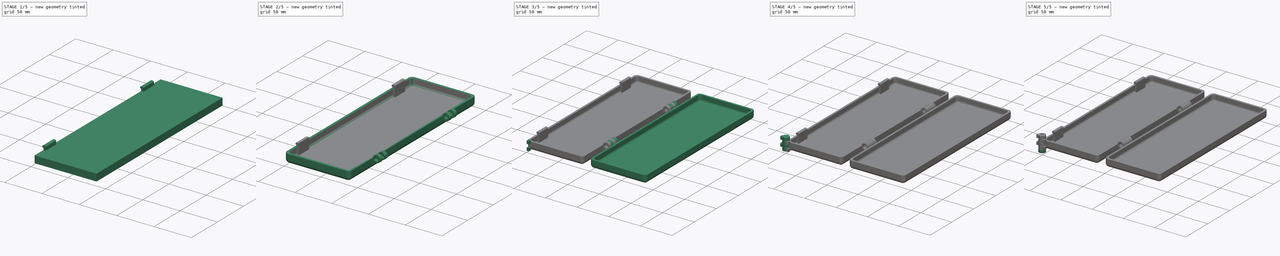
[diagram: build sequence overview — one tinted view per stage of 5, left to right]
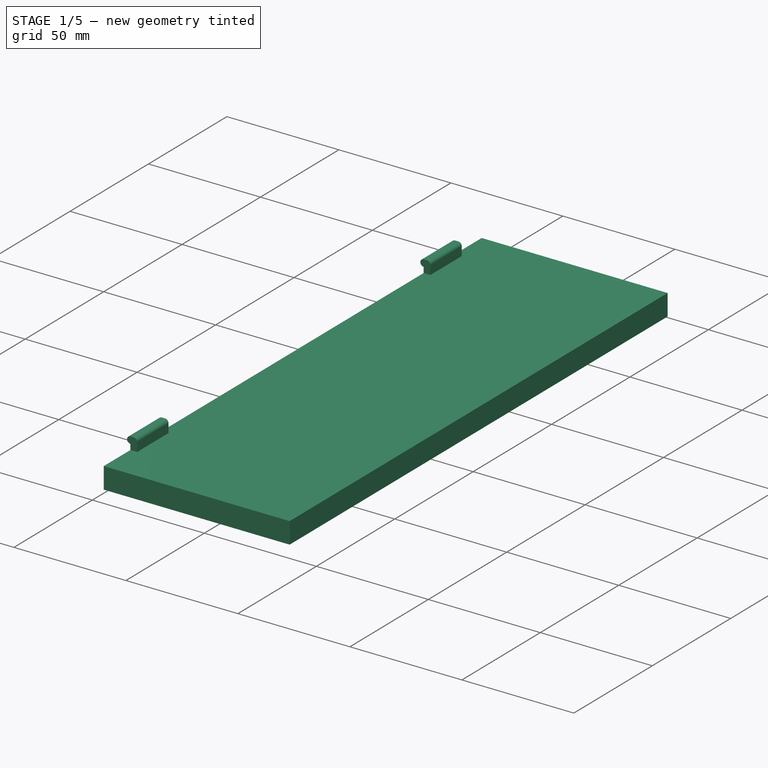
[diagram: stage 1 of 5 — iso view after this stage's code; geometry added in this stage tinted green]
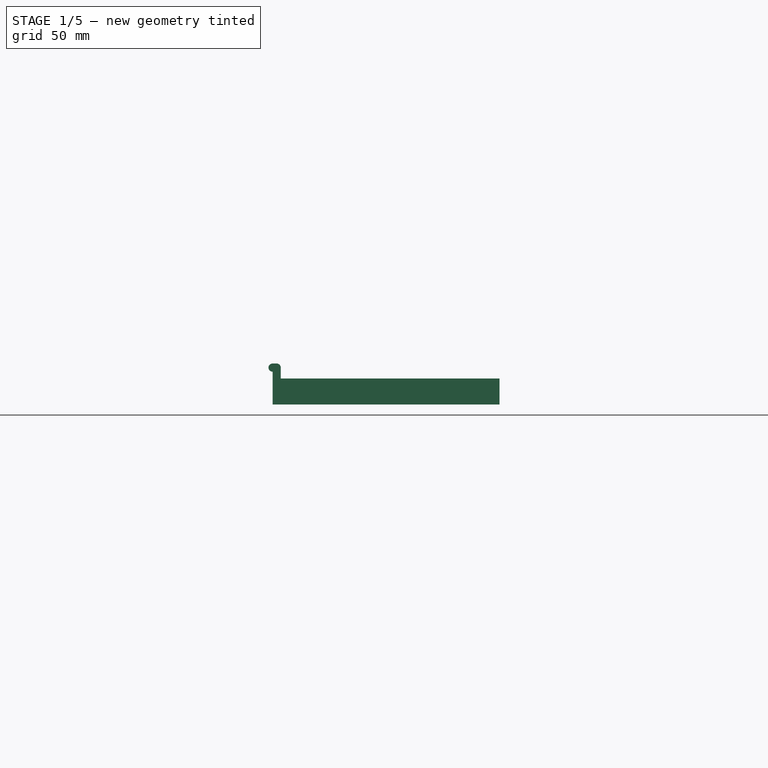
[diagram: stage 1 of 5 — front view after this stage's code; geometry added in this stage tinted green]
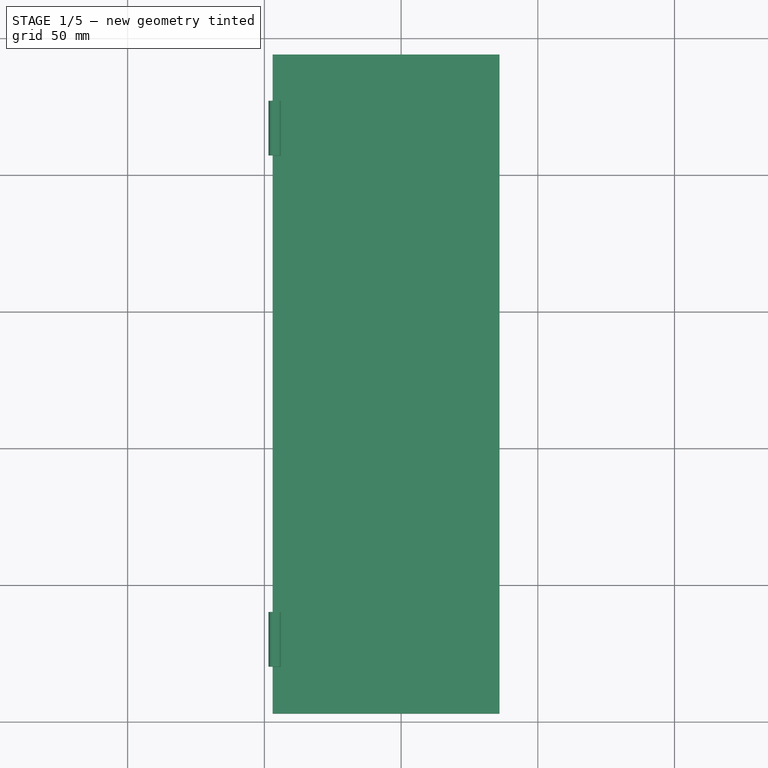
[diagram: stage 1 of 5 — top view after this stage's code; geometry added in this stage tinted green]
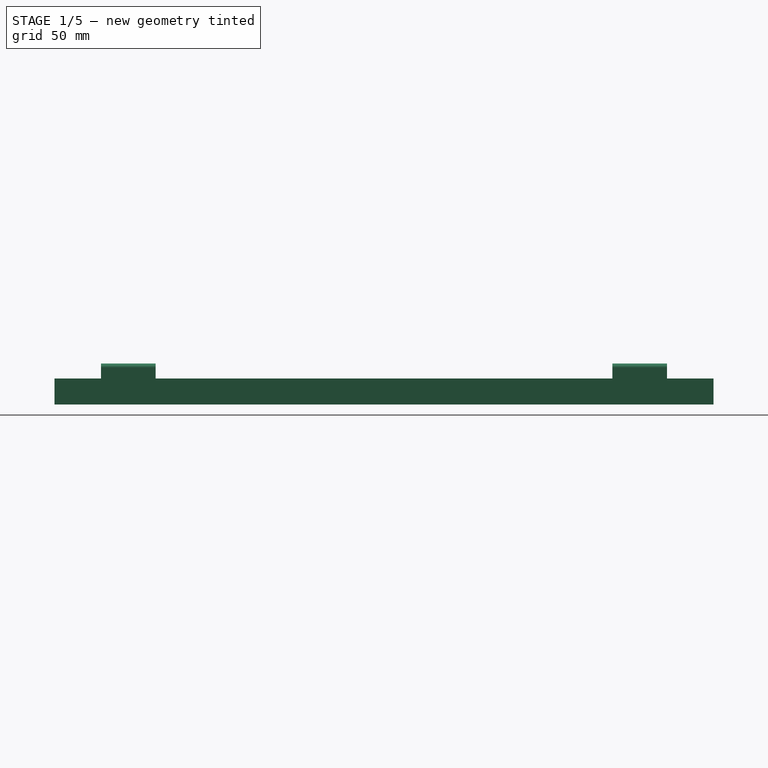
[diagram: stage 1 of 5 — right view after this stage's code; geometry added in this stage tinted green]
FCSTD DOCUMENT  (FreeCAD 0.18R4 (GitTag))
Label: CaliperCase
License: All rights reserved
LicenseURL: http://en.wikipedia.org/wiki/All_rights_reserved
objects: Part::FeaturePython×15, Part::Cylinder×12, Part::Box×10, Part::Fillet×5, Part::Feature×4, Sketcher::SketchObject×2, Part::Sweep×2, Part::Cut×2, Part::Helix×1, App::DocumentObjectGroup×1, Part::MultiFuse×1
note: 54 computed .brp shape members not serialized (recipe doc carries the construction recipe); baked Part::Feature solids carry a one-line shape summary decoded from their .brp

FEATURE [Part::Box] Box  label="Cube"
  AttacherType = Attacher::AttachEngine3D
  Height = 9.5
  Length = 83
  Placement = pos=(3,3,3) rot=(0,0,1;0rad)
  Width = 241
FEATURE [Part::Box] Box008  label="Cube008"
  AttacherType = Attacher::AttachEngine3D
  Height = 15
  Length = 3
  Placement = pos=(3,20,3) rot=(0,0,1;0rad)
  Width = 20
FEATURE [Part::Cylinder] Cylinder012
  Angle = 360
  AttacherType = Attacher::AttachEngine3D
  Height = 20
  Placement = pos=(3,20,16.5) rot=(1,0,0;-1.5708rad)
  Radius = 1.5
FEATURE [Part::FeaturePython] Connect007  label="Catch1"  # WARN: FeaturePython — macro-defined, semantics opaque (R4)
  Objects = -> [Box008,Cylinder012]
  Tolerance = 0
FEATURE [Part::Box] Box009  label="Cube009"
  AttacherType = Attacher::AttachEngine3D
  Height = 15
  Length = 3
  Placement = pos=(3,20,3) rot=(0,0,1;0rad)
  Width = 20
FEATURE [Part::Cylinder] Cylinder013
  Angle = 360
  AttacherType = Attacher::AttachEngine3D
  Height = 20
  Placement = pos=(3,20,16.5) rot=(-1,0,0;1.5708rad)
  Radius = 1.5
FEATURE [Part::FeaturePython] Connect008  label="Catch2"  # WARN: FeaturePython — macro-defined, semantics opaque (R4)
  Objects = -> [Box009,Cylinder013]
  Placement = pos=(0,187,0) rot=(0,0,1;0rad)
  Tolerance = 0
FEATURE [Part::Fillet] Fillet003
  Base = -> Connect007
  Edges = 1 edges r=1.5: [Edge20]
FEATURE [Part::Fillet] Fillet004
  Base = -> Connect008
  Edges = 1 edges r=1.5: [Edge21]
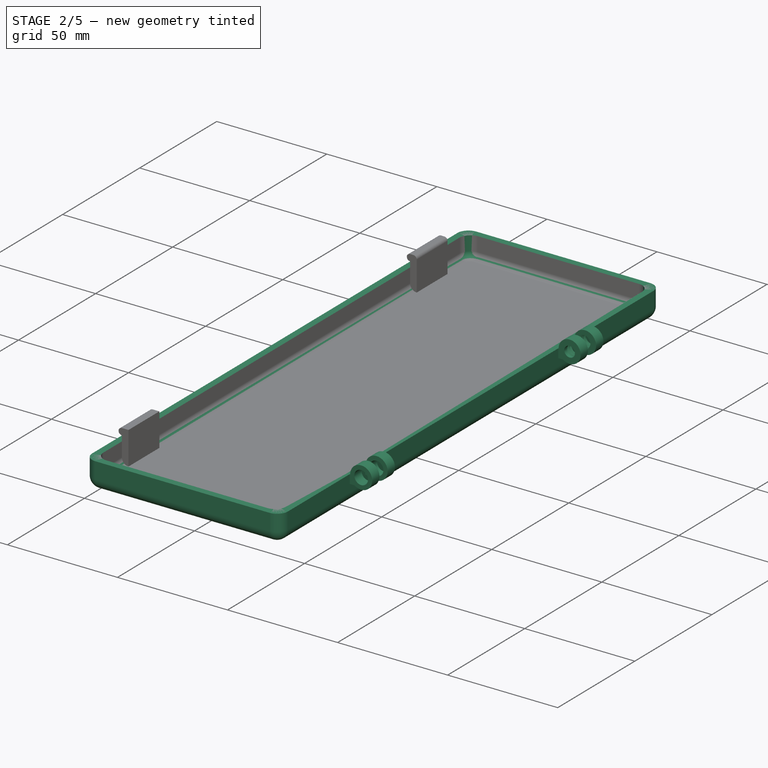
[diagram: stage 2 of 5 — iso view after this stage's code; geometry added in this stage tinted green]
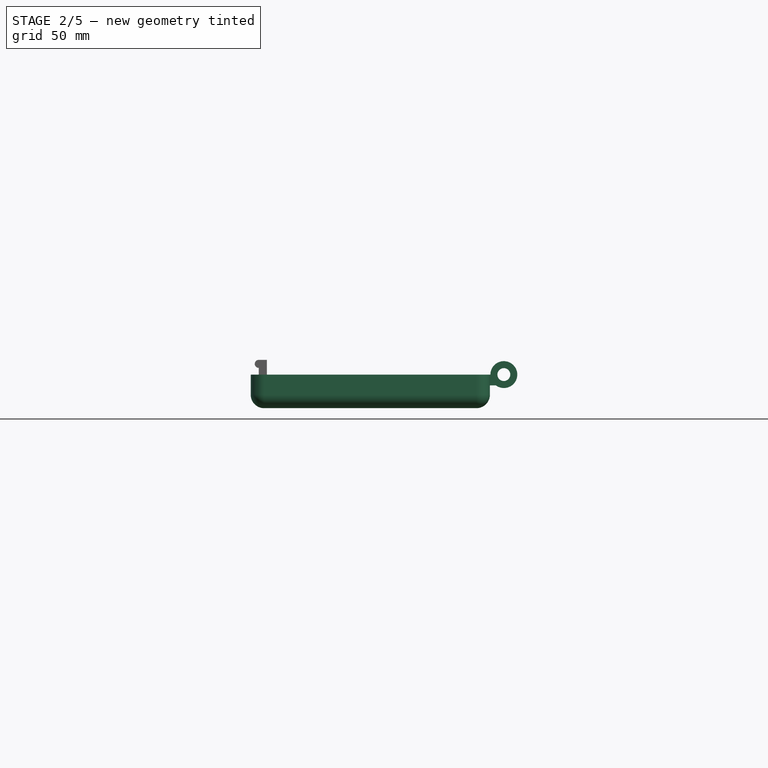
[diagram: stage 2 of 5 — front view after this stage's code; geometry added in this stage tinted green]
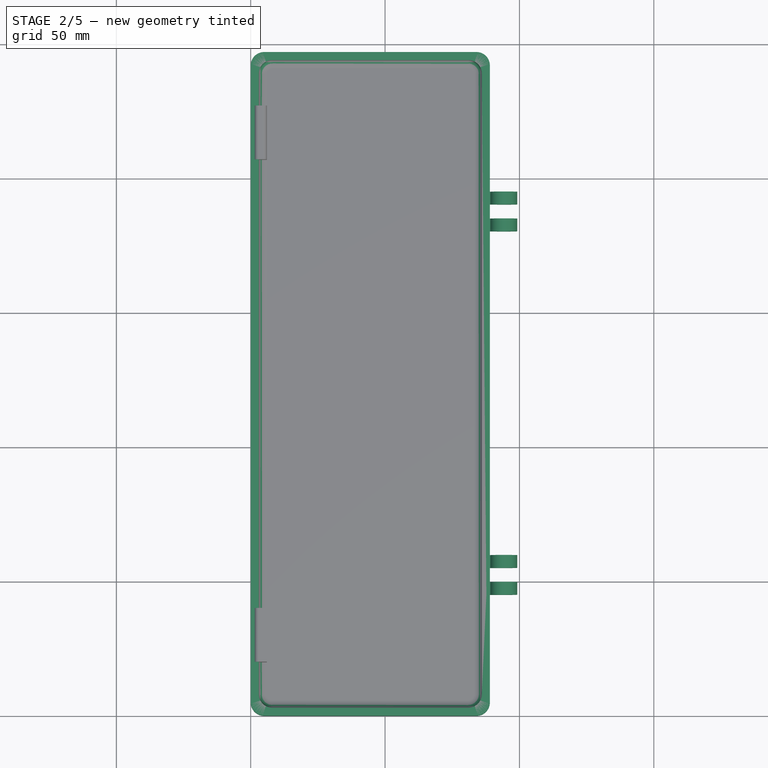
[diagram: stage 2 of 5 — top view after this stage's code; geometry added in this stage tinted green]
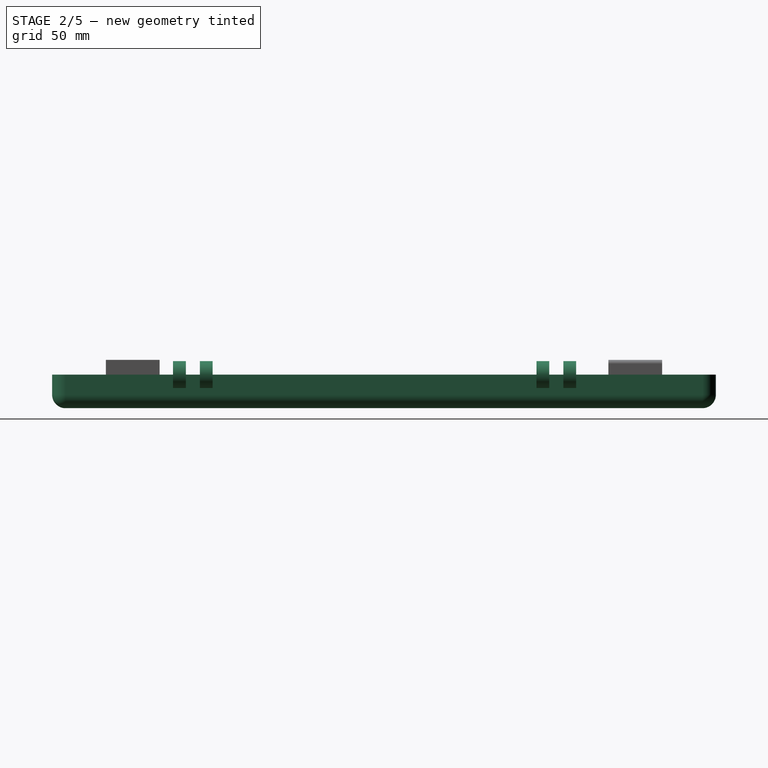
[diagram: stage 2 of 5 — right view after this stage's code; geometry added in this stage tinted green]
FEATURE [Part::Box] Box001  label="Cube001"
  AttacherType = Attacher::AttachEngine3D
  Height = 12.5
  Length = 89
  Width = 247
FEATURE [Part::Fillet] Fillet  label="Outer"
  Base = -> Box001
  Edges = 8 edges r=5: [Edge1,Edge3,Edge4,Edge5,Edge7,Edge8,Edge9,Edge11]
FEATURE [Part::Fillet] Fillet001
  Base = -> Box
  Edges = 4 edges r=5: [Edge1,Edge3,Edge5,Edge7]
FEATURE [Part::Fillet] Fillet002  label="Inner"
  Base = -> Fillet001
  Edges = 8 edges r=3: [Edge4,Edge12,Edge14,Edge16,Edge17,Edge18,Edge19,Edge20]
FEATURE [Part::Feature] Cut002  label="Hinge_Threaded001"
  Placement = pos=(94.2,200,12.5) rot=(1,0,0;1.5708rad)
  shape: bbox 11.5 x 16.75 x 10.77 mm, 48 faces, 2 solids (baked)
FEATURE [Part::Feature] Cut001001  label="Hinge_Unthreaded001"
  Placement = pos=(94.2,200,12.5) rot=(1,0,0;1.5708rad)
  shape: bbox 11.5 x 14.75 x 10 mm, 22 faces, 2 solids (baked)
FEATURE [Part::Feature] Cut001002  label="Hinge_Threaded002"
  Placement = pos=(94.2,45,12.5) rot=(0,0.707107,0.707107;3.14159rad)
  shape: bbox 11.5 x 16.75 x 10.77 mm, 48 faces, 2 solids (baked)
FEATURE [Part::Feature] Cut001003  label="Hinge_Unthreaded002"
  Placement = pos=(94.2,45,12.5) rot=(0,0.707107,0.707107;3.14159rad)
  shape: bbox 11.5 x 14.75 x 10 mm, 22 faces, 2 solids (baked)
FEATURE [Part::FeaturePython] Cutout  label="Top"  # WARN: FeaturePython — macro-defined, semantics opaque (R4)
  Base = -> Fillet
  Tolerance = 0
  Tool = -> Fillet002
FEATURE [Part::FeaturePython] Connect005  label="Top001"  # WARN: FeaturePython — macro-defined, semantics opaque (R4)
  Objects = -> [Cutout,Cut001003,Cut002]
  Tolerance = 0
FEATURE [Part::Cylinder] Cylinder014
  Angle = 360
  AttacherType = Attacher::AttachEngine3D
  Height = 20
  Placement = pos=(3,20,16.5) rot=(-1,0,0;1.5708rad)
  Radius = 1.5
FEATURE [Part::Box] Box011  label="Cube011"
  AttacherType = Attacher::AttachEngine3D
  Height = 13
  Length = 3
  Placement = pos=(3,20,5) rot=(0,0,1;0rad)
  Width = 20
FEATURE [Part::Cylinder] Cylinder015
  Angle = 360
  AttacherType = Attacher::AttachEngine3D
  Height = 20
  Placement = pos=(3,20,16.5) rot=(-1,0,0;1.5708rad)
  Radius = 1.5
FEATURE [Part::FeaturePython] Connect011  label="Top002"  # WARN: FeaturePython — macro-defined, semantics opaque (R4)
  Objects = -> [Connect005,Fillet003,Fillet004]
  Tolerance = 0
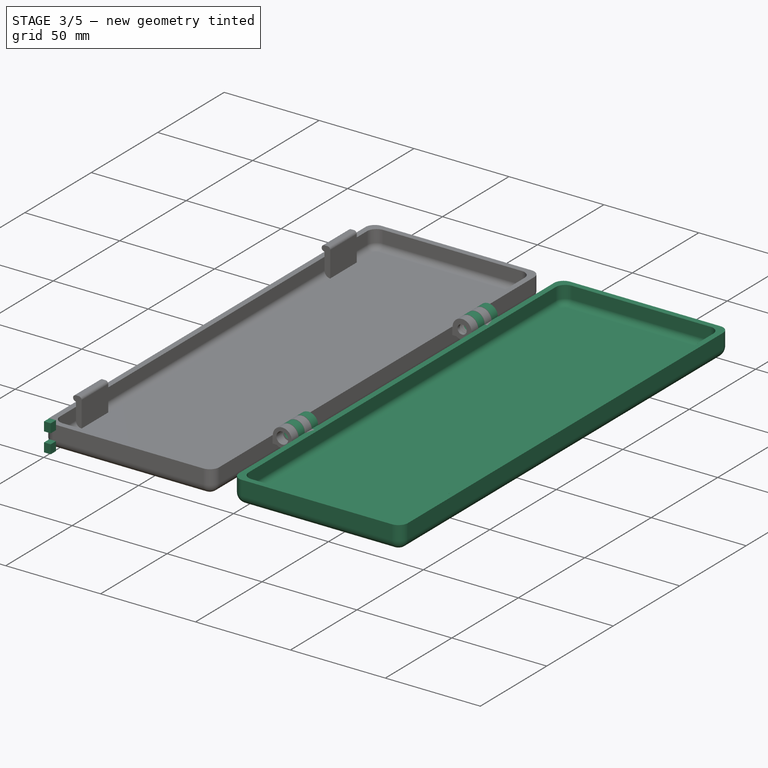
[diagram: stage 3 of 5 — iso view after this stage's code; geometry added in this stage tinted green]
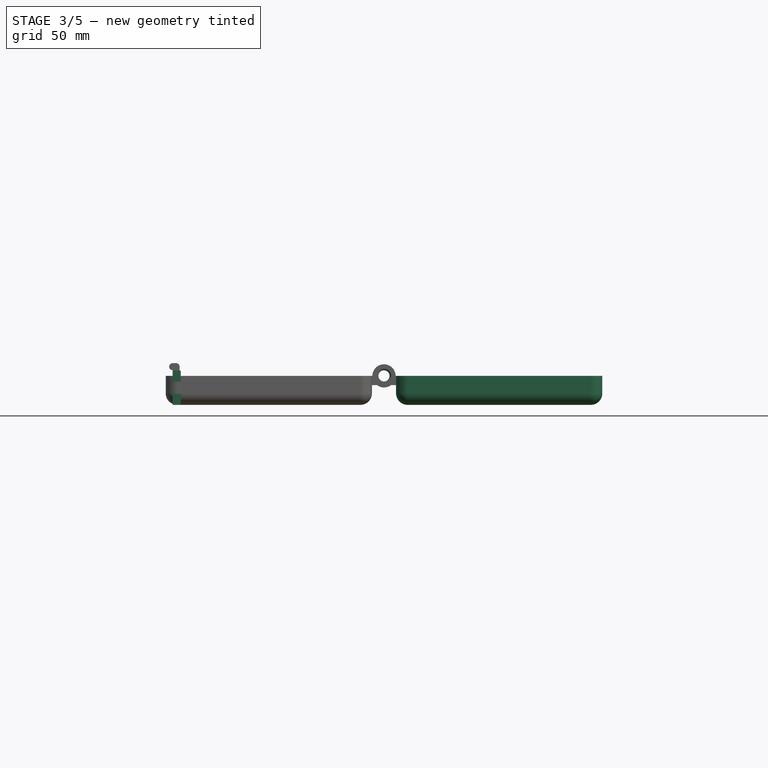
[diagram: stage 3 of 5 — front view after this stage's code; geometry added in this stage tinted green]
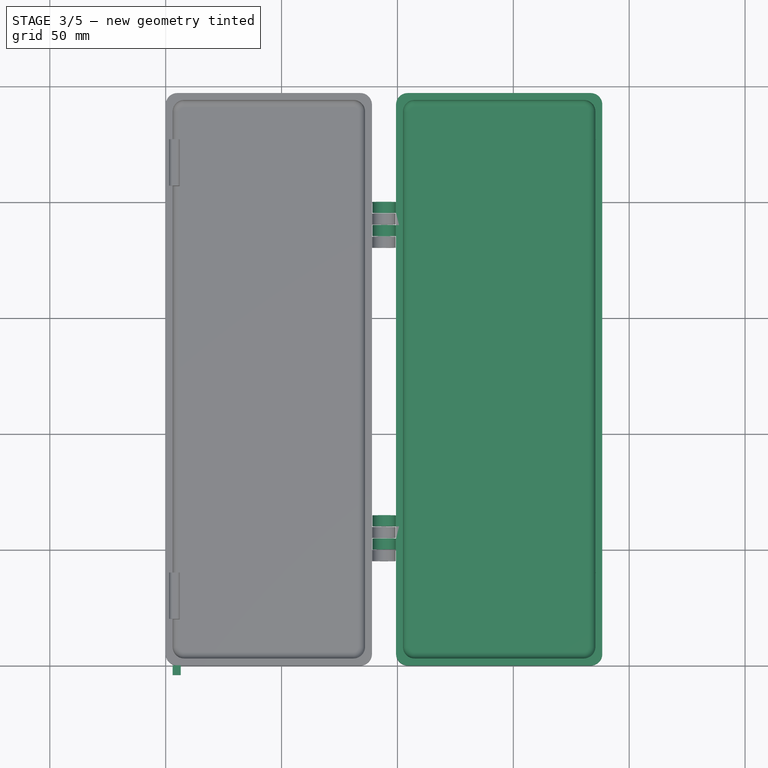
[diagram: stage 3 of 5 — top view after this stage's code; geometry added in this stage tinted green]
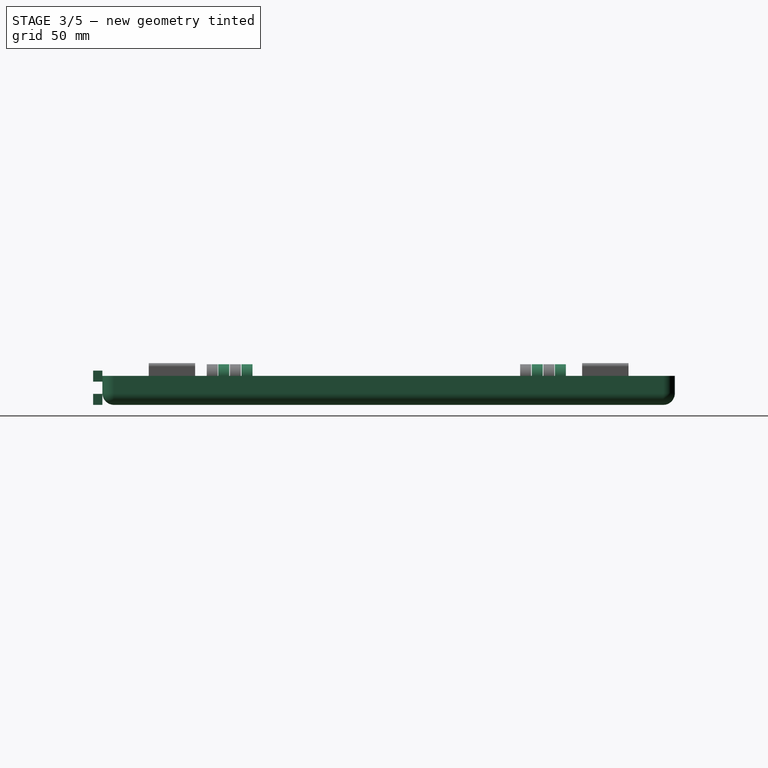
[diagram: stage 3 of 5 — right view after this stage's code; geometry added in this stage tinted green]
FEATURE [Part::FeaturePython] Cutout001  label="Bottom"  # WARN: FeaturePython — macro-defined, semantics opaque (R4)
  Base = -> Fillet
  Placement = pos=(99.4,0,0) rot=(0,0,1;0rad)
  Tolerance = 0
  Tool = -> Fillet002
FEATURE [Part::Box] Box002  label="Cube002"
  AttacherType = Attacher::AttachEngine3D
  Height = 4.75
  Length = 3.5
  Placement = pos=(3,-4,0) rot=(0,0,1;0rad)
  Width = 4
FEATURE [Part::Box] Box004  label="Cube004"
  AttacherType = Attacher::AttachEngine3D
  Height = 4.75
  Length = 3.5
  Placement = pos=(3,-4,10) rot=(0,0,1;0rad)
  Width = 4
FEATURE [Part::FeaturePython] Connect006  label="Bottom001"  # WARN: FeaturePython — macro-defined, semantics opaque (R4)
  Objects = -> [Cutout001,Cut001001,Cut001002]
  Tolerance = 0
FEATURE [Part::Box] Box010  label="Cube010"
  AttacherType = Attacher::AttachEngine3D
  Height = 13
  Length = 3
  Placement = pos=(3,20,5) rot=(0,0,1;0rad)
  Width = 20
FEATURE [Part::FeaturePython] Connect009  # WARN: FeaturePython — macro-defined, semantics opaque (R4)
  Objects = -> [Box010,Cylinder014]
  Placement = pos=(188.726,0,24.3709) rot=(0,1,0;3.14159rad)
  Tolerance = 0
FEATURE [Part::FeaturePython] Connect010  # WARN: FeaturePython — macro-defined, semantics opaque (R4)
  Objects = -> [Box011,Cylinder015]
  Placement = pos=(188.726,187,24.3709) rot=(0,1,0;3.14159rad)
  Tolerance = 0
FEATURE [Part::MultiFuse] Fusion
  Shapes = -> [Connect009,Connect010]
FEATURE [Part::FeaturePython] Cutout002  label="Bottom002"  # WARN: FeaturePython — macro-defined, semantics opaque (R4)
  Base = -> Connect006
  Tolerance = 0
  Tool = -> Fusion
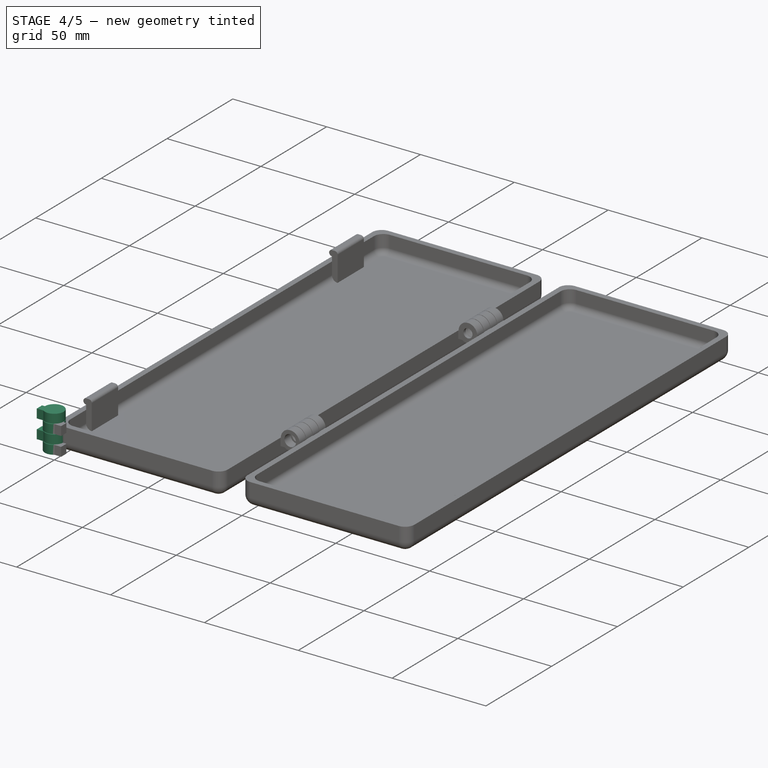
[diagram: stage 4 of 5 — iso view after this stage's code; geometry added in this stage tinted green]
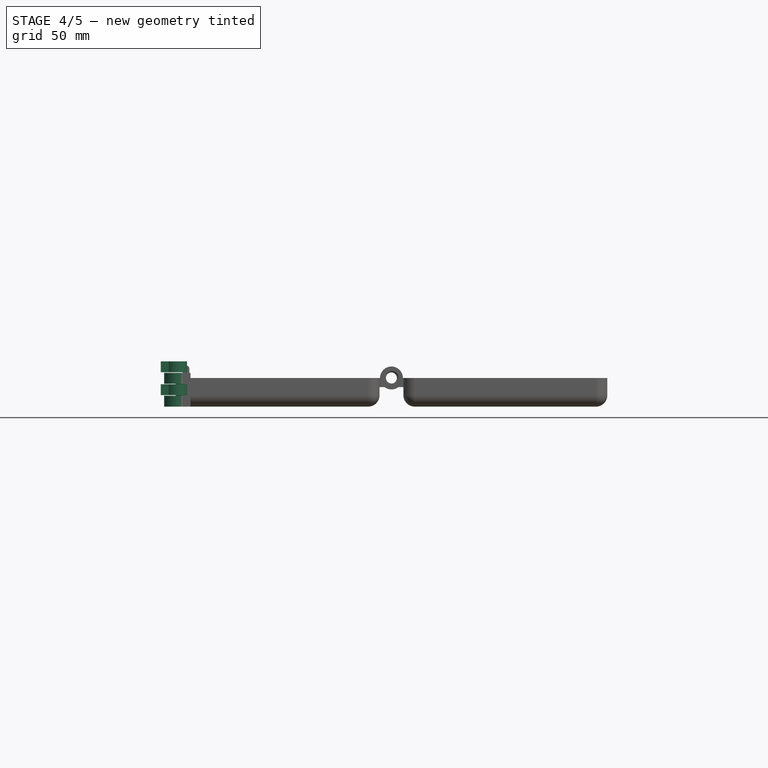
[diagram: stage 4 of 5 — front view after this stage's code; geometry added in this stage tinted green]
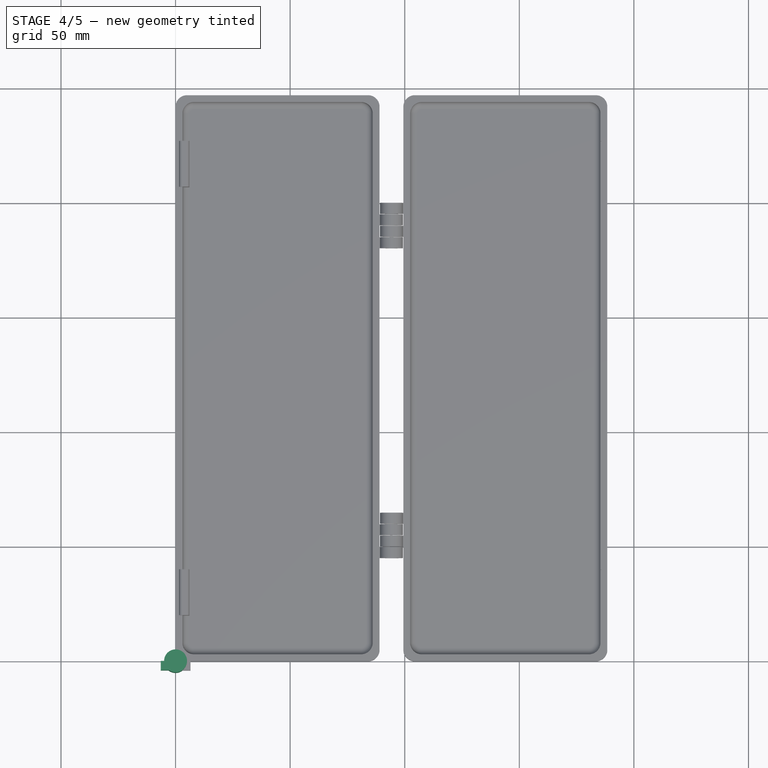
[diagram: stage 4 of 5 — top view after this stage's code; geometry added in this stage tinted green]
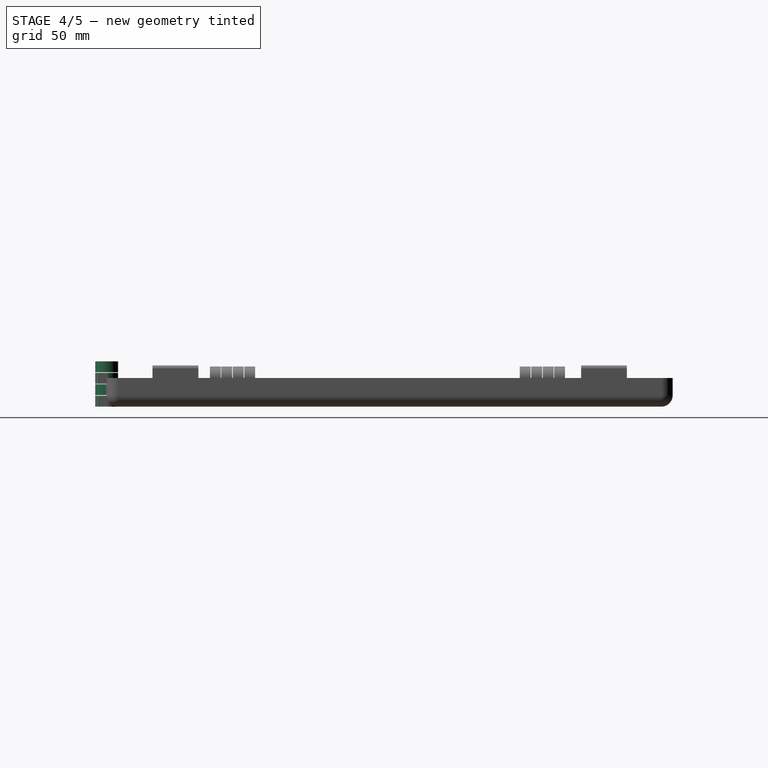
[diagram: stage 4 of 5 — right view after this stage's code; geometry added in this stage tinted green]
FEATURE [Part::Cylinder] Cylinder
  Angle = 360
  AttacherType = Attacher::AttachEngine3D
  Height = 4.75
  Radius = 5
FEATURE [Part::Cylinder] Cylinder002
  Angle = 360
  AttacherType = Attacher::AttachEngine3D
  Height = 4.75
  Placement = pos=(0,0,10) rot=(0,0,1;0rad)
  Radius = 5
FEATURE [Part::Cylinder] Cylinder006
  Angle = 360
  AttacherType = Attacher::AttachEngine3D
  Height = 4.75
  Placement = pos=(0,0,15) rot=(0,0,1;0rad)
  Radius = 5
FEATURE [Part::Box] Box006  label="Cube006"
  AttacherType = Attacher::AttachEngine3D
  Height = 4.75
  Length = 3.5
  Placement = pos=(-6.5,-4,5) rot=(0,0,1;0rad)
  Width = 4
FEATURE [Part::Box] Box007  label="Cube007"
  AttacherType = Attacher::AttachEngine3D
  Height = 4.75
  Length = 3.5
  Placement = pos=(-6.5,-4,15) rot=(0,0,1;0rad)
  Width = 4
FEATURE [Part::Cylinder] Cylinder008
  Angle = 360
  AttacherType = Attacher::AttachEngine3D
  Height = 4.75
  Placement = pos=(0,0,5) rot=(0,0,1;0rad)
  Radius = 5
FEATURE [Part::Cylinder] Cylinder010
  Angle = 360
  AttacherType = Attacher::AttachEngine3D
  Height = 20
  Radius = 3.1
FEATURE [Part::FeaturePython] Connect003  # WARN: FeaturePython — macro-defined, semantics opaque (R4)
  Objects = -> [Box007,Cylinder006,Box006,Cylinder008]
  Tolerance = 0
FEATURE [Part::FeaturePython] Connect004  # WARN: FeaturePython — macro-defined, semantics opaque (R4)
  Objects = -> [Cylinder,Cylinder002,Box002,Box004]
  Tolerance = 0
FEATURE [Part::Cut] Cut001  label="Hinge_Unthreaded"
  Base = -> Connect004
  Tool = -> Cylinder010
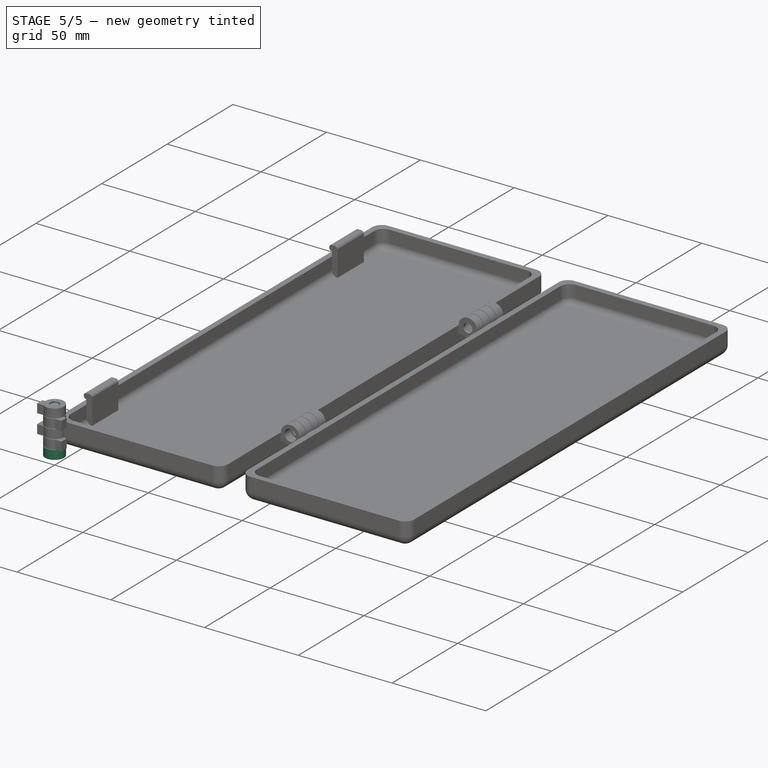
[diagram: stage 5 of 5 — iso view after this stage's code; geometry added in this stage tinted green]
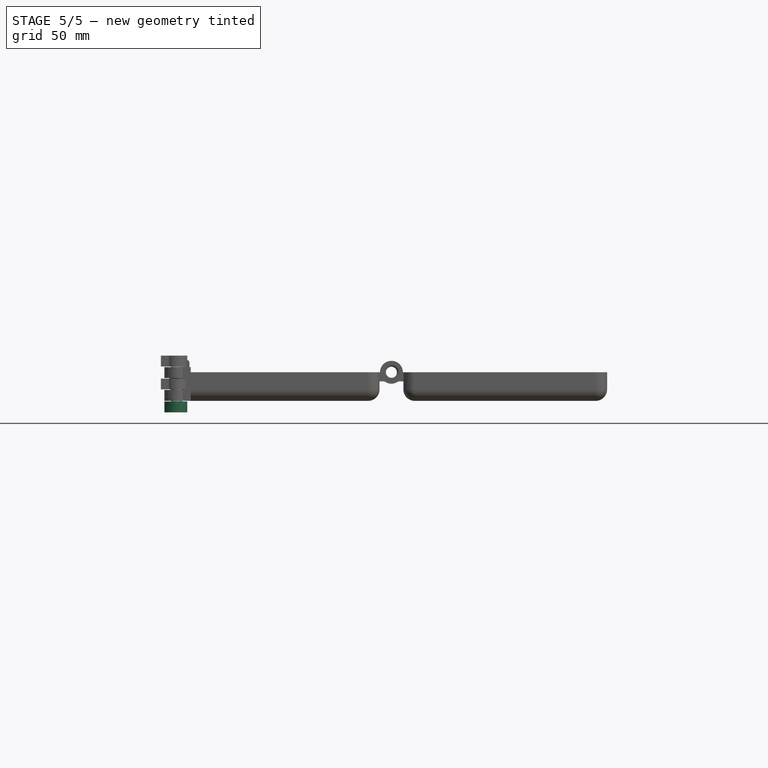
[diagram: stage 5 of 5 — front view after this stage's code; geometry added in this stage tinted green]
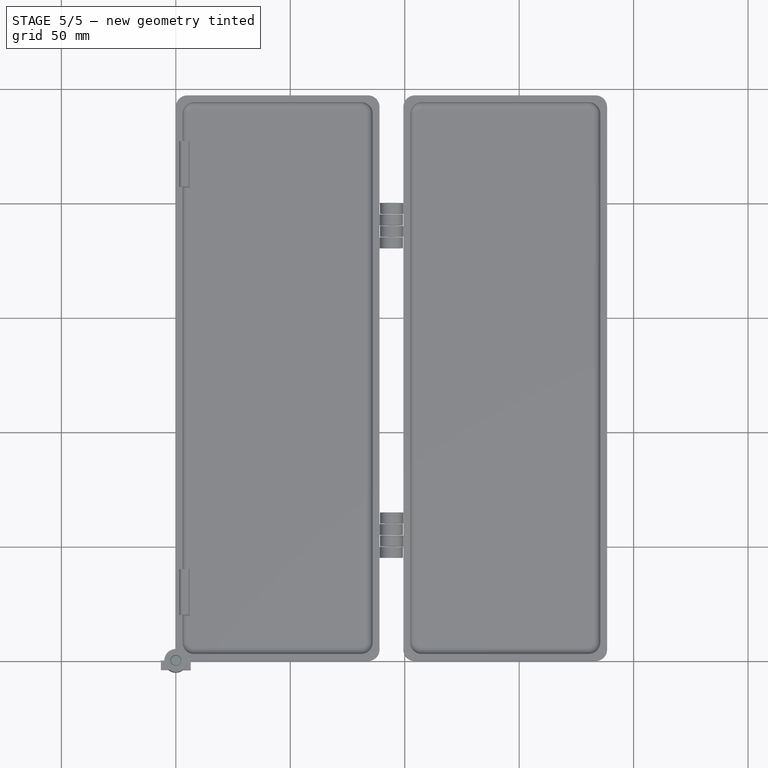
[diagram: stage 5 of 5 — top view after this stage's code; geometry added in this stage tinted green]
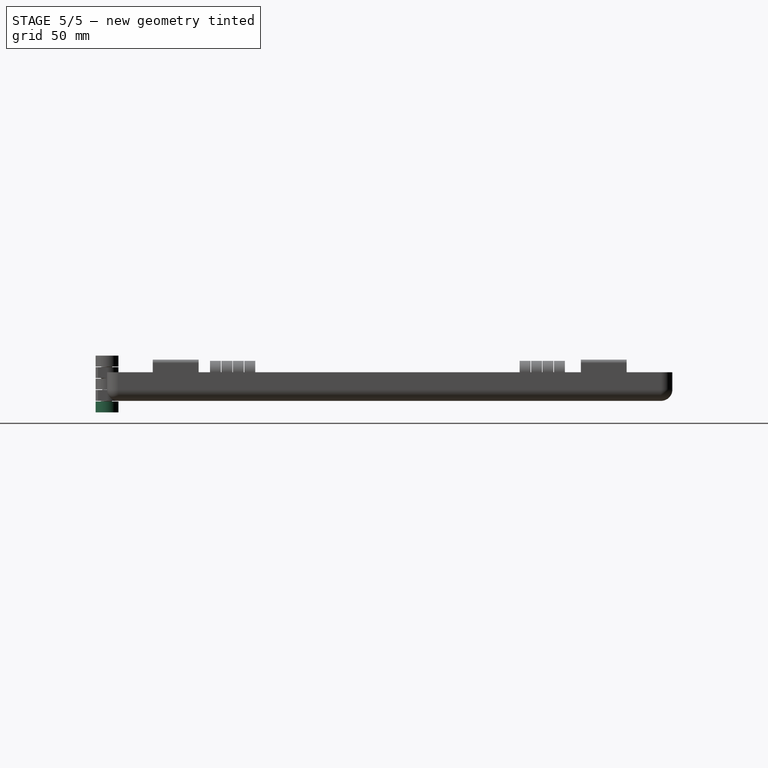
[diagram: stage 5 of 5 — right view after this stage's code; geometry added in this stage tinted green]
FEATURE [Part::Cylinder] Cylinder007
  Angle = 360
  AttacherType = Attacher::AttachEngine3D
  Height = 22
  Placement = pos=(0,0,-0.75) rot=(0,0,1;0rad)
  Radius = 2.4
FEATURE [Part::Helix] Helix
  Angle = 0
  AttacherType = Attacher::AttachEngine3D
  Height = 20
  LocalCoord = 0
  Pitch = 1.5
  Radius = 2.5
  Style = 1
FEATURE [Sketcher::SketchObject] Sketch
  Placement = pos=(0,0,0) rot=(-1,0,0;4.71239rad)
  sketch-geometry (5):
    g0: LineSegment StartX=2 StartY=0.57735 StartZ=0 EndX=2 EndY=-0.57735 EndZ=0
    g1: LineSegment StartX=2 StartY=-0.57735 StartZ=0 EndX=3 EndY=0 EndZ=0
    g2: LineSegment StartX=3 StartY=0 StartZ=0 EndX=2 EndY=0.57735 EndZ=0
    g3: LineSegment [constr] StartX=0 StartY=0 StartZ=0 EndX=2.5 EndY=0 EndZ=0
    g4: LineSegment [constr] StartX=2.5 StartY=0 StartZ=0 EndX=3 EndY=0 EndZ=0
  constraints (14):
    c: Coincident(g0,g1)
    c: Coincident(g1,g2)
    c: Coincident(g2,g0)
    c: Angle(g2,g1) = 1.0472
    c: Vertical(g0)
    c: Coincident(g3,g-1)
    c: Horizontal(g3)
    c: Distance(g3) = 2.5
    c: Coincident(g3,g4)
    c: Horizontal(g4)
    c: Coincident(g1,g4)
    c: Distance(g1,g3) = 0.5
    c: Distance(g3,g0) = 0.5
    c: Equal(g1,g2)
FEATURE [Sketcher::SketchObject] Sketch001
  Placement = pos=(0,0,0) rot=(1,0,0;1.5708rad)
  sketch-geometry (5):
    g0: LineSegment StartX=1.5 StartY=1.1547 StartZ=0 EndX=1.5 EndY=-1.1547 EndZ=0
    g1: LineSegment StartX=1.5 StartY=-1.1547 StartZ=0 EndX=3.5 EndY=0 EndZ=0
    g2: LineSegment StartX=3.5 StartY=0 StartZ=0 EndX=1.5 EndY=1.1547 EndZ=0
    g3: LineSegment [constr] StartX=0 StartY=0 StartZ=0 EndX=2.5 EndY=0 EndZ=0
    g4: LineSegment [constr] StartX=2.5 StartY=0 StartZ=0 EndX=3.5 EndY=0 EndZ=0
  constraints (14):
    c: Coincident(g0,g1)
    c: Coincident(g1,g2)
    c: Coincident(g2,g0)
    c: Angle(g2,g1) = 1.0472
    c: Vertical(g0)
    c: Coincident(g3,g-1)
    c: Horizontal(g3)
    c: Distance(g3) = 2.5
    c: Coincident(g3,g4)
    c: Horizontal(g4)
    c: Coincident(g1,g4)
    c: Distance(g1,g3) = 1
    c: Distance(g3,g0) = 1
    c: Equal(g1,g2)
FEATURE [Part::Sweep] Sweep  label="ScrewThread_Inner_Model"
  Frenet = true
  Sections = -> [Sketch]
  Solid = true
  Spine = -> Helix
  Transition = 1
FEATURE [Part::Sweep] Sweep001  label="ScrewThread_Outer_Model"
  Frenet = true
  Sections = -> [Sketch001]
  Solid = true
  Spine = -> Helix
  Transition = 1
FEATURE [Part::Cylinder] Cylinder009
  Angle = 360
  AttacherType = Attacher::AttachEngine3D
  Height = 22
  Placement = pos=(0,0,-1.25) rot=(0,0,1;0rad)
  Radius = 2.1
FEATURE [App::DocumentObjectGroup] Group  label="ScrewParts"
  Group = -> [Helix,Sweep,Sweep001,Cylinder009,Cylinder007]
FEATURE [Part::FeaturePython] Connect  # WARN: FeaturePython — macro-defined, semantics opaque (R4)
  Objects = -> [Sweep,Cylinder009]
  Placement = pos=(0,0,-1.5) rot=(0,0,1;0rad)
  Tolerance = 0
FEATURE [Part::FeaturePython] Connect001  label="OutherThread"  # WARN: FeaturePython — macro-defined, semantics opaque (R4)
  Objects = -> [Sweep001,Cylinder007]
  Placement = pos=(0,0,-1.5) rot=(0,0,1;0rad)
  Tolerance = 0
FEATURE [Part::Cylinder] Cylinder011
  Angle = 360
  AttacherType = Attacher::AttachEngine3D
  Height = 4.75
  Placement = pos=(0,0,-5) rot=(0,0,1;0rad)
  Radius = 5
FEATURE [Part::FeaturePython] Connect002  label="Screw"  # WARN: FeaturePython — macro-defined, semantics opaque (R4)
  Objects = -> [Cylinder011,Connect]
  Tolerance = 0
FEATURE [Part::Cut] Cut  label="Hinge_Threaded"
  Base = -> Connect003
  Tool = -> Connect001
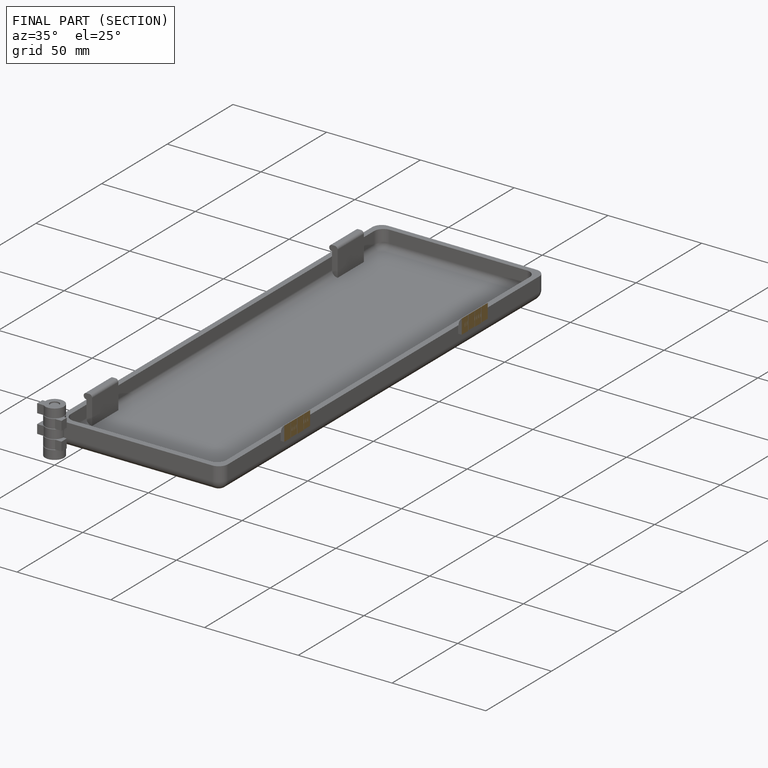
[diagram: finished part — half-section view (interior)]
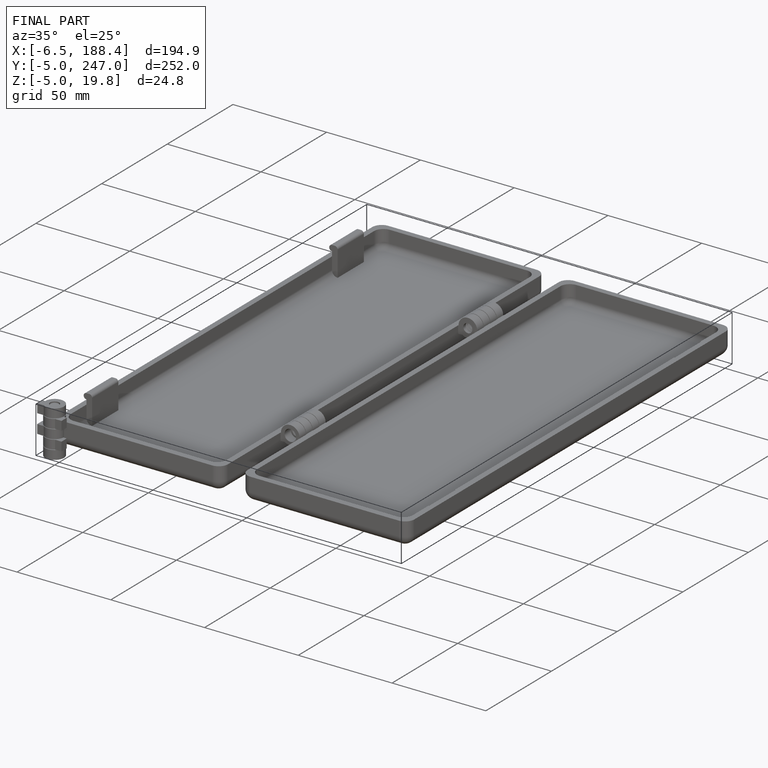
[diagram: finished part — iso view with bounding-box wireframe]
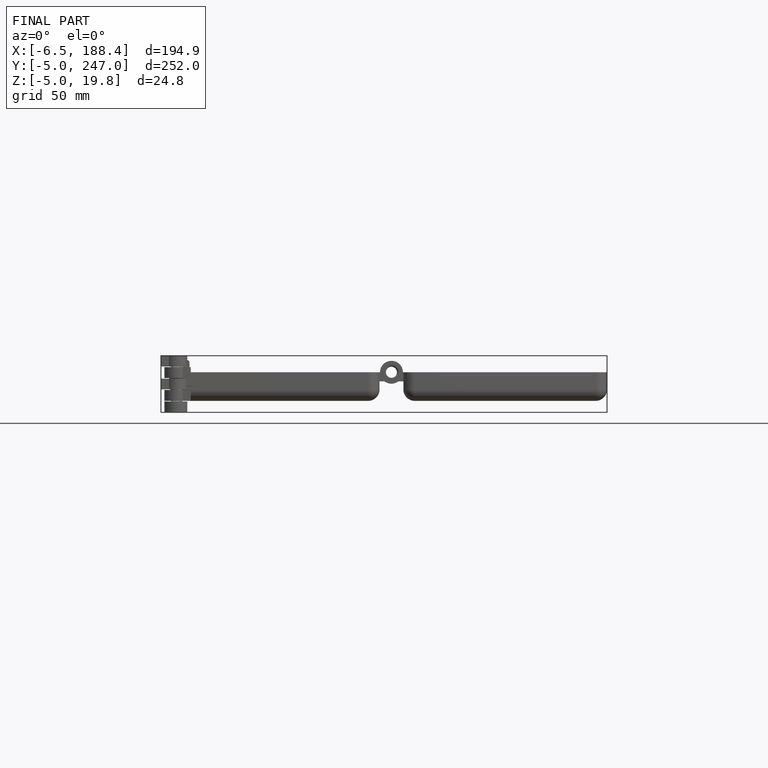
[diagram: finished part — front view with bounding-box wireframe]
